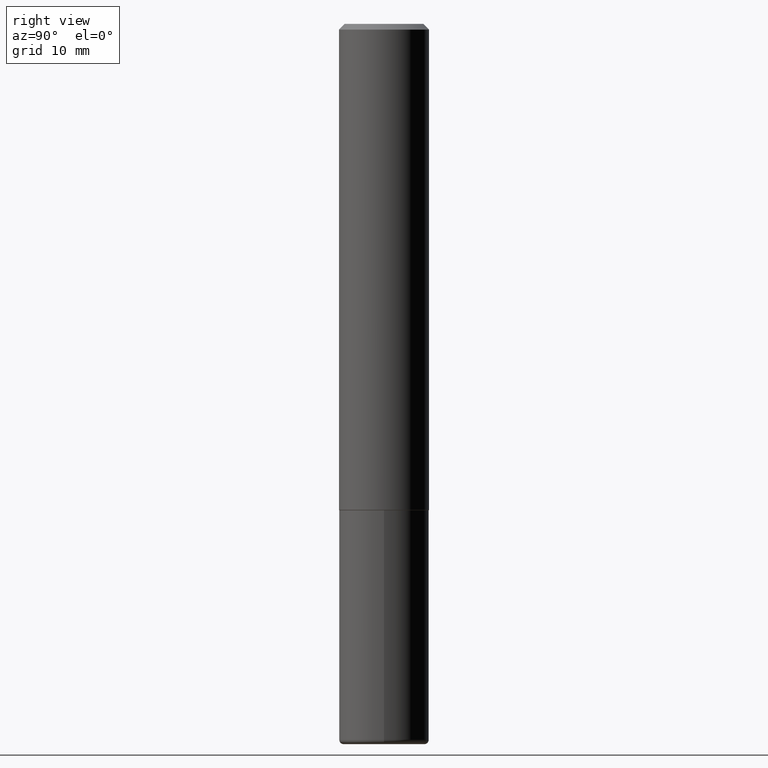
[diagram: clean part render]
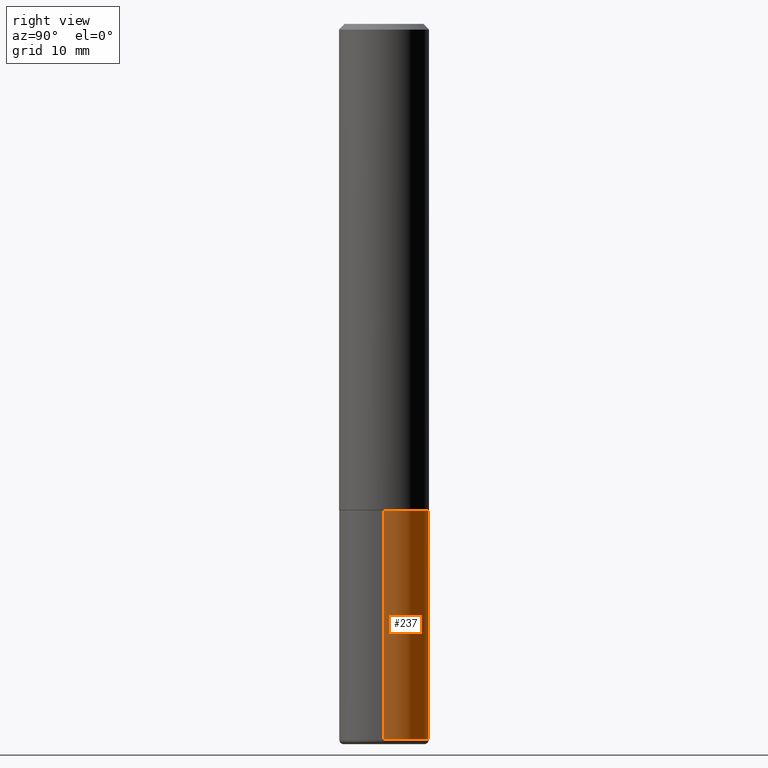
[diagram: same view with one face highlighted and labeled with its STEP entity id]
A machine part, right view. The second image highlights one B-rep face of the part: STEP entity #237.
In plain terms, the highlighted cylindrical surface (partial cylindrical patch) has radius 3.9688 mm, axis along (-0, 0, 1).
Its self-contained STEP definition (entity closure, byte-faithful):
#6 = LINE ( 'NONE', #144, #221 ) ;
#7 = CARTESIAN_POINT ( 'NONE',  ( 6.076989983370064174E-29, -8.676331127025216680E-15, -2.484999999999999876 ) ) ;
#14 = CARTESIAN_POINT ( 'NONE',  ( -0.1562500000000000000, -6.174752788871067364E-15, -1.688000000000000167 ) ) ;
#29 = DIRECTION ( 'NONE',  ( -2.445468806185136877E-29, 3.491481338843145188E-15, 1.000000000000000000 ) ) ;
#63 = LINE ( 'NONE', #315, #247 ) ;
#66 = DIRECTION ( 'NONE',  ( -2.445468806185136597E-29, 3.491481338843145583E-15, 1.000000000000000000 ) ) ;
#106 = DIRECTION ( 'NONE',  ( 1.000000000000000000, -6.982962677686266711E-15, 4.876176775795936353E-29 ) ) ;
#134 = DIRECTION ( 'NONE',  ( -2.445468806185136597E-29, 3.491481338843145583E-15, 1.000000000000000000 ) ) ;
#137 = FACE_OUTER_BOUND ( 'NONE', #282, .T. ) ;
#144 = CARTESIAN_POINT ( 'NONE',  ( 0.1562500000000000000, -1.091087918388479174E-15, 7.619026212181150377E-30 ) ) ;
#145 = CARTESIAN_POINT ( 'NONE',  ( 0.000000000000000000, 0.000000000000000000, 0.000000000000000000 ) ) ;
#162 = CARTESIAN_POINT ( 'NONE',  ( 4.127951344840510809E-29, -5.893620499967230340E-15, -1.688000000000000167 ) ) ;
#169 = ORIENTED_EDGE ( 'NONE', *, *, #172, .T. ) ;
#172 = EDGE_CURVE ( 'NONE', #416, #372, #63, .T. ) ;
#177 = CARTESIAN_POINT ( 'NONE',  ( -0.1562499999999999167, -7.566108102400061717E-15, -2.484999999999999876 ) ) ;
#181 = EDGE_CURVE ( 'NONE', #280, #372, #183, .T. ) ;
#183 = CIRCLE ( 'NONE', #241, 0.1562500000000000000 ) ;
#199 = CYLINDRICAL_SURFACE ( 'NONE', #292, 0.1562500000000000000 ) ;
#204 = CARTESIAN_POINT ( 'NONE',  ( 0.1562499999999999167, -9.767419045413696643E-15, -2.484999999999999876 ) ) ;
#208 = CIRCLE ( 'NONE', #259, 0.1562499999999999722 ) ;
#219 = ORIENTED_EDGE ( 'NONE', *, *, #181, .F. ) ;
#221 = VECTOR ( 'NONE', #361, 39.37007874015748143 ) ;
#230 = EDGE_CURVE ( 'NONE', #319, #416, #208, .T. ) ;
#237 = ADVANCED_FACE ( 'NONE', ( #137 ), #199, .T. ) ;
#241 = AXIS2_PLACEMENT_3D ( 'NONE', #162, #134, #377 ) ;
#247 = VECTOR ( 'NONE', #29, 39.37007874015748143 ) ;
#259 = AXIS2_PLACEMENT_3D ( 'NONE', #7, #323, #357 ) ;
#280 = VERTEX_POINT ( 'NONE', #327 ) ;
#282 = EDGE_LOOP ( 'NONE', ( #378, #169, #219, #284 ) ) ;
#284 = ORIENTED_EDGE ( 'NONE', *, *, #325, .F. ) ;
#292 = AXIS2_PLACEMENT_3D ( 'NONE', #145, #66, #106 ) ;
#315 = CARTESIAN_POINT ( 'NONE',  ( -0.1562500000000000000, 1.110223024625156540E-15, -7.685836078523291160E-30 ) ) ;
#319 = VERTEX_POINT ( 'NONE', #204 ) ;
#323 = DIRECTION ( 'NONE',  ( -2.445468806185136597E-29, 3.491481338843145583E-15, 1.000000000000000000 ) ) ;
#325 = EDGE_CURVE ( 'NONE', #319, #280, #6, .T. ) ;
#327 = CARTESIAN_POINT ( 'NONE',  ( 0.1562500000000000000, -6.984708418355709513E-15, -1.688000000000000167 ) ) ;
#357 = DIRECTION ( 'NONE',  ( 1.000000000000000000, -6.982962677686270655E-15, 0.000000000000000000 ) ) ;
#361 = DIRECTION ( 'NONE',  ( -2.445468806185136877E-29, 3.491481338843145188E-15, 1.000000000000000000 ) ) ;
#372 = VERTEX_POINT ( 'NONE', #14 ) ;
#377 = DIRECTION ( 'NONE',  ( 1.000000000000000000, -6.982962677686269077E-15, 0.000000000000000000 ) ) ;
#378 = ORIENTED_EDGE ( 'NONE', *, *, #230, .T. ) ;
#416 = VERTEX_POINT ( 'NONE', #177 ) ;